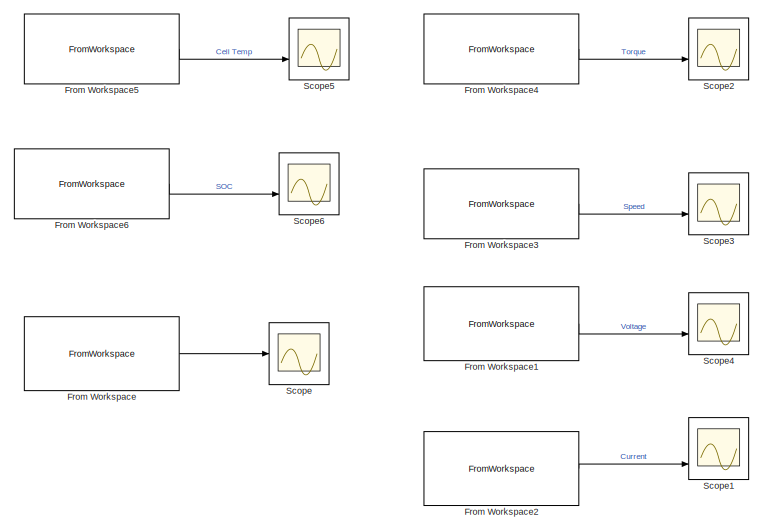
[diagram: root canvas - part 1/2, left side, full height]
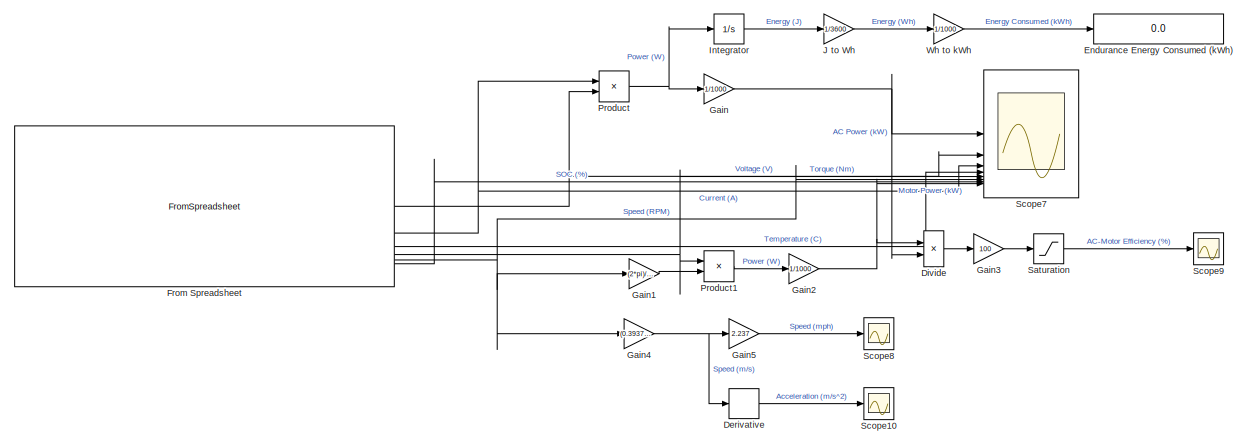
[diagram: root canvas - part 2/2, right side, full height]
MODEL slx_22805b96d51c
KIND model
CONFIG AbsTol = auto
CONFIG EnableMultiTasking = off
CONFIG FixedStep = 0.1
CONFIG MaxStep = auto
CONFIG MinStep = auto
CONFIG RelTol = 1e-3
CONFIG SampleTimeConstraint = Unconstrained
CONFIG SolverName = FixedStepAuto
CONFIG StartTime = 0.0
CONFIG StopTime = 2618.70000000000
BLOCK [Derivative] Derivative
BLOCK [Product] Divide
  Inputs = */
BLOCK [Display] Endurance Energy Consumed (kWh) 
  Decimation = 1
BLOCK [FromSpreadsheet] From Spreadsheet
  FileName = <userpath>\OneDrive\Documentos\GitHub\FE12-Accumulator\FE12\FE11 Data Analysis\FE11 Endurance Full Data V2.xlsx
BLOCK [FromWorkspace] From Workspace
  Commented = on
  VariableName = FullData
BLOCK [FromWorkspace] From Workspace1
  Commented = on
  VariableName = VoltageData
BLOCK [FromWorkspace] From Workspace2
  Commented = on
  VariableName = CurrentData
BLOCK [FromWorkspace] From Workspace3
  Commented = on
  VariableName = Speed
BLOCK [FromWorkspace] From Workspace4
  Commented = on
  VariableName = Torque
BLOCK [FromWorkspace] From Workspace5
  Commented = on
  VariableName = CellTemperatureData
BLOCK [FromWorkspace] From Workspace6
  Commented = on
  VariableName = SOC
BLOCK [Gain] Gain
  Gain = 1/1000
BLOCK [Gain] Gain1
  Gain = (2*pi)/60
BLOCK [Gain] Gain2
  Gain = 1/1000
BLOCK [Gain] Gain3
  Gain = 100
BLOCK [Gain] Gain4
  Gain = (0.3937*pi)/(2.75*60)
BLOCK [Gain] Gain5
  Gain = 2.237
BLOCK [Integrator] Integrator
BLOCK [Gain] J to Wh
  Gain = 1/3600
BLOCK [Product] Product
BLOCK [Product] Product1
BLOCK [Saturate] Saturation
  LowerLimit = 0
  UpperLimit = 100
BLOCK [Scope] Scope
  Commented = on
  Floating = off
  NumInputPorts = 1
  ScopeSpecificationString = Simulink.scopes.TimeScopeBlockCfg('CurrentConfiguration', extmgr.ConfigurationSet(extmgr.Configuration('Core','General UI',true),extmgr.Configuration('Core','Source UI',true),extmgr.Configuration('Sources','WiredSimulink',true),extmgr.Configuration('Visuals','Time Domain',true,'SerializedDisplays',{struct('MinYLimReal','-109.75375','MaxYLimReal','560.78375','YLabelReal','','MinYLimMag',' 0.00000',...<+7410ch>
BLOCK [Scope] Scope1
  Commented = on
  Floating = off
  NumInputPorts = 3
  ScopeSpecificationString = Simulink.scopes.TimeScopeBlockCfg('CurrentConfiguration', extmgr.ConfigurationSet(extmgr.Configuration('Core','General UI',true),extmgr.Configuration('Core','Source UI',true),extmgr.Configuration('Sources','WiredSimulink',true,'DataLoggingVariableName','ScopeData1'),extmgr.Configuration('Visuals','Time Domain',true,'SerializedDisplays',{struct('MinYLimReal','-72.4875','MaxYLimReal','164.3875','YLa...<+2091ch>
BLOCK [Scope] Scope10
  Floating = off
  NumInputPorts = 1
  ScopeSpecificationString = Simulink.scopes.TimeScopeBlockCfg('CurrentConfiguration', extmgr.ConfigurationSet(extmgr.Configuration('Core','General UI',true),extmgr.Configuration('Core','Source UI',true),extmgr.Configuration('Sources','WiredSimulink',true,'DataLoggingVariableName','ScopeData3'),extmgr.Configuration('Visuals','Time Domain',true),extmgr.Configuration('Tools','Plot Navigation',true),extmgr.Configuration('Tools',...<+40ch>
BLOCK [Scope] Scope2
  Commented = on
  Floating = off
  NumInputPorts = 3
  ScopeSpecificationString = Simulink.scopes.TimeScopeBlockCfg('CurrentConfiguration', extmgr.ConfigurationSet(extmgr.Configuration('Core','General UI',true),extmgr.Configuration('Core','Source UI',true),extmgr.Configuration('Sources','WiredSimulink',true,'DataLoggingVariableName','ScopeData2'),extmgr.Configuration('Visuals','Time Domain',true,'SerializedDisplays',{struct('MinYLimReal','-24.5','MaxYLimReal','220.5','YLabelRea...<+2072ch>
BLOCK [Scope] Scope3
  Commented = on
  Floating = off
  NumInputPorts = 3
  ScopeSpecificationString = Simulink.scopes.TimeScopeBlockCfg('CurrentConfiguration', extmgr.ConfigurationSet(extmgr.Configuration('Core','General UI',true),extmgr.Configuration('Core','Source UI',true),extmgr.Configuration('Sources','WiredSimulink',true,'DataLoggingVariableName','ScopeData3'),extmgr.Configuration('Visuals','Time Domain',true,'SerializedDisplays',{struct('MinYLimReal','-1.00000','MaxYLimReal','1.00000','YLab...<+2089ch>
BLOCK [Scope] Scope4
  Commented = on
  Floating = off
  NumInputPorts = 3
  ScopeSpecificationString = Simulink.scopes.TimeScopeBlockCfg('CurrentConfiguration', extmgr.ConfigurationSet(extmgr.Configuration('Core','General UI',true),extmgr.Configuration('Core','Source UI',true),extmgr.Configuration('Sources','WiredSimulink',true,'DataLoggingVariableName','ScopeData4'),extmgr.Configuration('Visuals','Time Domain',true,'SerializedDisplays',{struct('MinYLimReal','-61.71625','MaxYLimReal','555.44625','Y...<+2097ch>
BLOCK [Scope] Scope5
  Commented = on
  Floating = off
  NumInputPorts = 3
  ScopeSpecificationString = Simulink.scopes.TimeScopeBlockCfg('CurrentConfiguration', extmgr.ConfigurationSet(extmgr.Configuration('Core','General UI',true),extmgr.Configuration('Core','Source UI',true),extmgr.Configuration('Sources','WiredSimulink',true,'DataLoggingVariableName','ScopeData5'),extmgr.Configuration('Visuals','Time Domain',true,'SerializedDisplays',{struct('MinYLimReal','-6.625','MaxYLimReal','59.625','YLabelR...<+2085ch>
BLOCK [Scope] Scope6
  Commented = on
  Floating = off
  NumInputPorts = 3
  ScopeSpecificationString = Simulink.scopes.TimeScopeBlockCfg('CurrentConfiguration', extmgr.ConfigurationSet(extmgr.Configuration('Core','General UI',true),extmgr.Configuration('Core','Source UI',true),extmgr.Configuration('Sources','WiredSimulink',true,'DataLoggingVariableName','ScopeData6'),extmgr.Configuration('Visuals','Time Domain',true,'SerializedDisplays',{struct('MinYLimReal','-20.00000','MaxYLimReal','180.00000','Y...<+2093ch>
BLOCK [Scope] Scope7
  Floating = off
  NumInputPorts = 9
  ScopeSpecificationString = Simulink.scopes.TimeScopeBlockCfg('CurrentConfiguration', extmgr.ConfigurationSet(extmgr.Configuration('Core','General UI',true),extmgr.Configuration('Core','Source UI',true),extmgr.Configuration('Sources','WiredSimulink',true,'DataLoggingVariableName','ScopeData7'),extmgr.Configuration('Visuals','Time Domain',true,'SerializedDisplays',{struct('MinYLimReal','-22.58162','MaxYLimReal','64.26586','YL...<+7023ch>
BLOCK [Scope] Scope8
  Floating = off
  NumInputPorts = 1
  ScopeSpecificationString = Simulink.scopes.TimeScopeBlockCfg('CurrentConfiguration', extmgr.ConfigurationSet(extmgr.Configuration('Core','General UI',true),extmgr.Configuration('Core','Source UI',true),extmgr.Configuration('Sources','WiredSimulink',true,'DataLoggingVariableName','ScopeData1'),extmgr.Configuration('Visuals','Time Domain',true),extmgr.Configuration('Tools','Plot Navigation',true),extmgr.Configuration('Tools',...<+40ch>
BLOCK [Scope] Scope9
  Floating = off
  NumInputPorts = 1
  ScopeSpecificationString = Simulink.scopes.TimeScopeBlockCfg('CurrentConfiguration', extmgr.ConfigurationSet(extmgr.Configuration('Core','General UI',true),extmgr.Configuration('Core','Source UI',true),extmgr.Configuration('Sources','WiredSimulink',true,'DataLoggingVariableName','ScopeData2'),extmgr.Configuration('Visuals','Time Domain',true),extmgr.Configuration('Tools','Plot Navigation',true),extmgr.Configuration('Tools',...<+40ch>
BLOCK [Gain] Wh to kWh
  Gain = 1/1000
LINE Derivative:1 -> Scope10:1
LINE Divide:1 -> Gain3:1
NET From Spreadsheet:1 -> Product:2, Scope7:2
NET From Spreadsheet:2 -> Product:1, Scope7:3
LINE From Spreadsheet:3 -> Scope7:4
NET From Spreadsheet:4 -> Product1:1, Scope7:5
NET From Spreadsheet:5 -> Gain1:1, Gain4:1, Scope7:6
LINE From Spreadsheet:6 -> Scope7:7
LINE From Workspace1:1 -> Scope4:2
LINE From Workspace2:1 -> Scope1:3
LINE From Workspace3:1 -> Scope3:2
LINE From Workspace4:1 -> Scope2:2
LINE From Workspace5:1 -> Scope5:2
LINE From Workspace6:1 -> Scope6:2
LINE From Workspace:1 -> Scope:1
LINE Gain1:1 -> Product1:2
NET Gain2:1 -> Divide:1, Scope7:8
LINE Gain3:1 -> Saturation:1
NET Gain4:1 -> Derivative:1, Gain5:1
LINE Gain5:1 -> Scope8:1
NET Gain:1 -> Divide:2, Scope7:1
LINE Integrator:1 -> J to Wh:1
LINE J to Wh:1 -> Wh to kWh:1
LINE Product1:1 -> Gain2:1
NET Product:1 -> Gain:1, Integrator:1
LINE Saturation:1 -> Scope9:1
LINE Wh to kWh:1 -> Endurance Energy Consumed (kWh) :1
note: NET lines group one-source signal fan-out (src -> all destinations, sorted); 1:1 wires keep LINE
